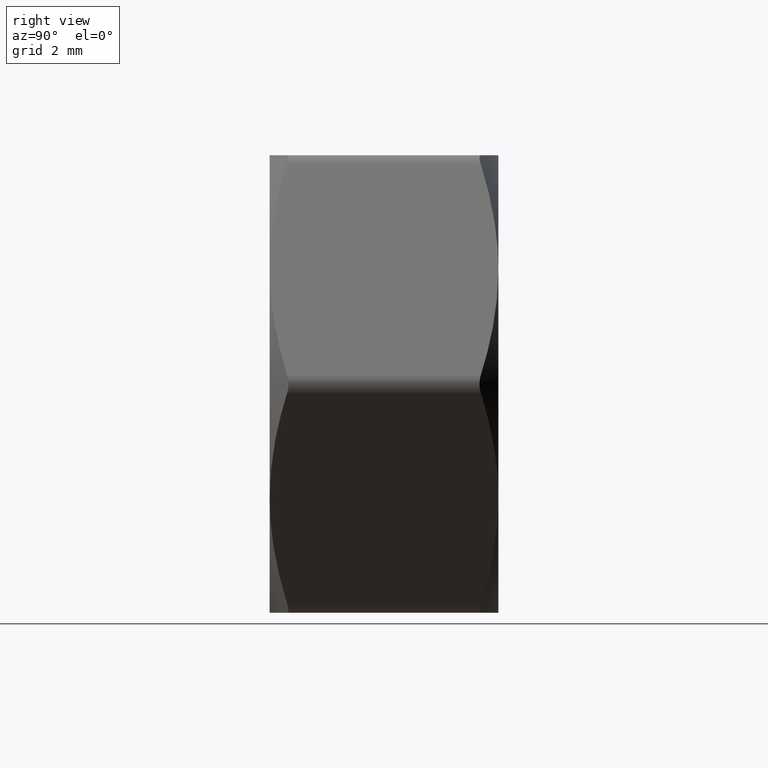
[diagram: clean part render]
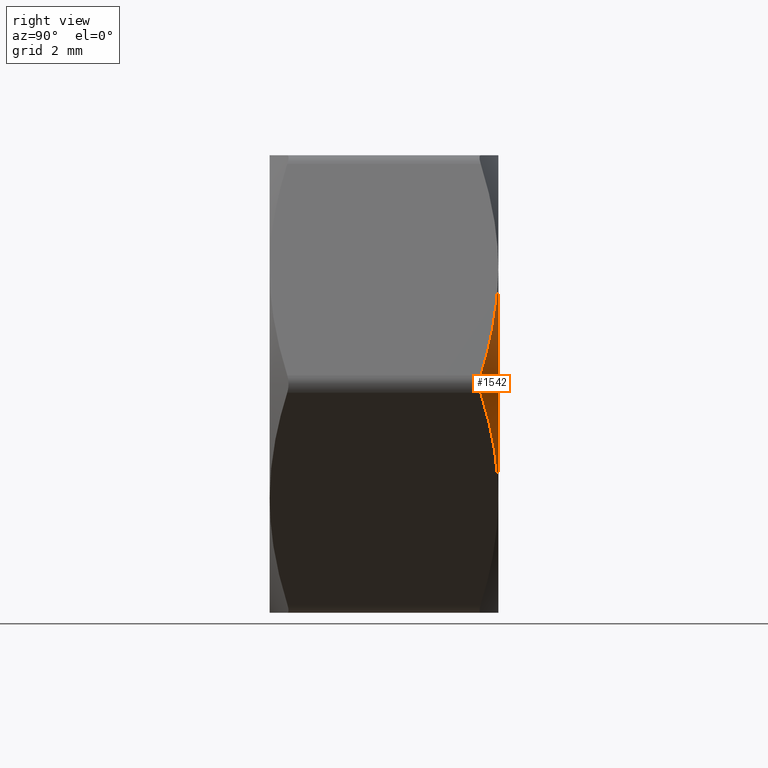
[diagram: same view with one face highlighted and labeled with its STEP entity id]
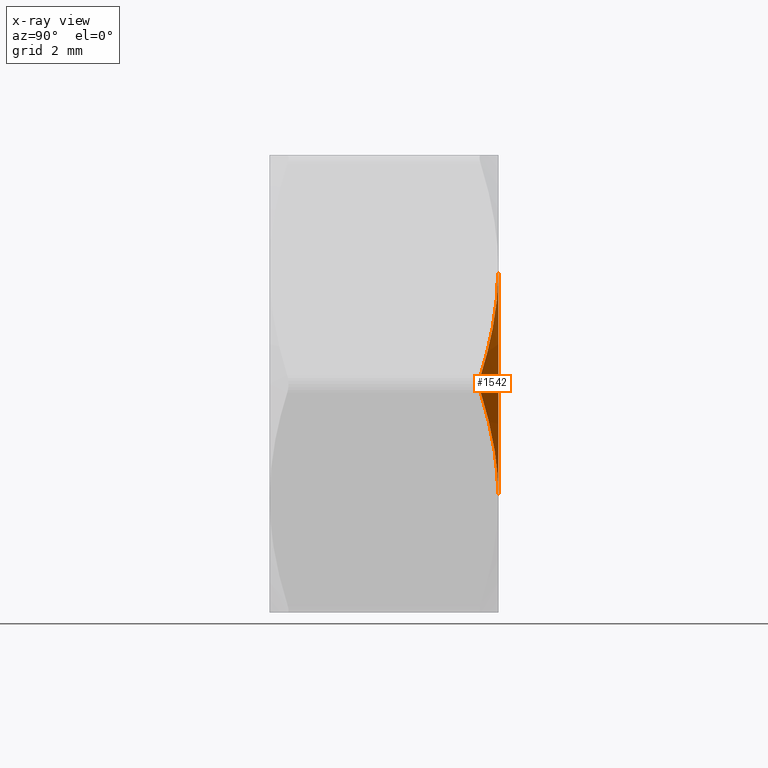
[diagram: x-ray of the same camera — body ghosted, the highlighted face saturated]
A machine part, right view. The second image highlights one B-rep face of the part: STEP entity #1542.
The next image is the same camera in x-ray: the body ghosted, the highlighted face saturated — about 0% of this face is hidden behind the body in this view.
In plain terms, the highlighted conical surface has half-angle 60 deg.
Its self-contained STEP definition (entity closure, byte-faithful):
#14 = CARTESIAN_POINT ( 'NONE',  ( 7.361215932167731100, 2.750326475674879800, -0.2499999999999953900 ) ) ;
#26 = DIRECTION ( 'NONE',  ( 1.000000000000000000, 1.334402673828313300E-016, 0.0000000000000000000 ) ) ;
#33 = CARTESIAN_POINT ( 'NONE',  ( 6.793038842262233400, 3.029614908576547400, -1.234111587412948700 ) ) ;
#90 = DIRECTION ( 'NONE',  ( -0.0000000000000000000, -1.000000000000000000, -0.0000000000000000000 ) ) ;
#141 = EDGE_LOOP ( 'NONE', ( #1475, #1432, #1016, #584 ) ) ;
#149 = CARTESIAN_POINT ( 'NONE',  ( 5.629165124598849900, 3.249999999999999100, -3.250000000000001300 ) ) ;
#183 = CARTESIAN_POINT ( 'NONE',  ( 7.404203769544580800, 2.726980839270554600, -0.1755428815563432100 ) ) ;
#252 = CARTESIAN_POINT ( 'NONE',  ( 6.794026904718143600, 3.058352876056135800, 1.232400213038266700 ) ) ;
#263 = CARTESIAN_POINT ( 'NONE',  ( -3.386450907888041400E-016, 3.249999999999998700, 0.0000000000000000000 ) ) ;
#274 = CARTESIAN_POINT ( 'NONE',  ( 5.923365020047798500, 3.238358288205309200, -2.740430833500967700 ) ) ;
#329 = B_SPLINE_CURVE_WITH_KNOTS ( 'NONE', 3,
 ( #578, #1090, #565, #1567, #183, #947 ),
 .UNSPECIFIED., .F., .F.,
 ( 4, 2, 4 ),
 ( 2.009333649176328600E-015, 0.0002636355533736799100, 0.0005272711067453504600 ),
 .UNSPECIFIED. ) ;
#346 = CIRCLE ( 'NONE', #726, 6.499999999999997300 ) ;
#492 = VERTEX_POINT ( 'NONE', #615 ) ;
#500 = CARTESIAN_POINT ( 'NONE',  ( 5.629165124598850800, 3.249999999999999100, 3.249999999999999600 ) ) ;
#565 = CARTESIAN_POINT ( 'NONE',  ( 7.428125153970312600, 2.714143658310082000, 0.08847891585259294600 ) ) ;
#577 = VERTEX_POINT ( 'NONE', #1406 ) ;
#578 = CARTESIAN_POINT ( 'NONE',  ( 7.361215932168766700, 2.750326475674317100, 0.2499999999982097700 ) ) ;
#584 = ORIENTED_EDGE ( 'NONE', *, *, #1197, .T. ) ;
#615 = CARTESIAN_POINT ( 'NONE',  ( 7.361215932168766700, 2.750326475674317100, 0.2499999999982097700 ) ) ;
#617 = B_SPLINE_CURVE_WITH_KNOTS ( 'NONE', 3,
 ( #868, #252, #1008, #500 ),
 .UNSPECIFIED., .F., .F.,
 ( 4, 4 ),
 ( 0.0002974810109325099900, 0.003797433802554438500 ),
 .UNSPECIFIED. ) ;
#711 = CARTESIAN_POINT ( 'NONE',  ( 5.629165124598849900, 3.249999999999999100, -3.250000000000001300 ) ) ;
#726 = AXIS2_PLACEMENT_3D ( 'NONE', #1604, #90, #860 ) ;
#782 = CARTESIAN_POINT ( 'NONE',  ( 6.360320613116883200, 3.159567907072294600, -1.983601545653925500 ) ) ;
#797 = FACE_OUTER_BOUND ( 'NONE', #141, .T. ) ;
#832 = B_SPLINE_CURVE_WITH_KNOTS ( 'NONE', 3,
 ( #149, #1284, #274, #1544, #782, #33, #1029, #14 ),
 .UNSPECIFIED., .F., .F.,
 ( 4, 2, 2, 4 ),
 ( 0.003797433802554440700, 0.004668978453557810900, 0.005540523104561182100, 0.007283612406567920900 ),
 .UNSPECIFIED. ) ;
#860 = DIRECTION ( 'NONE',  ( 0.0000000000000000000, 0.0000000000000000000, 1.000000000000000000 ) ) ;
#868 = CARTESIAN_POINT ( 'NONE',  ( 7.361215932168766700, 2.750326475674317100, 0.2499999999982097700 ) ) ;
#881 = CONICAL_SURFACE ( 'NONE', #987, 6.499999999999999100, 1.047197551196603000 ) ;
#947 = CARTESIAN_POINT ( 'NONE',  ( 7.361215932167731100, 2.750326475674879800, -0.2499999999999953900 ) ) ;
#985 = EDGE_CURVE ( 'NONE', #492, #1413, #329, .T. ) ;
#987 = AXIS2_PLACEMENT_3D ( 'NONE', #263, #1293, #26 ) ;
#1008 = CARTESIAN_POINT ( 'NONE',  ( 6.218478719796789500, 3.250000000000000400, 2.229278911526101600 ) ) ;
#1016 = ORIENTED_EDGE ( 'NONE', *, *, #1556, .F. ) ;
#1029 = CARTESIAN_POINT ( 'NONE',  ( 7.078287489049793100, 2.903977949313087900, -0.7400464383866253200 ) ) ;
#1090 = CARTESIAN_POINT ( 'NONE',  ( 7.404188987665278000, 2.726988866944812400, 0.1755684845217779500 ) ) ;
#1134 = VERTEX_POINT ( 'NONE', #711 ) ;
#1197 = EDGE_CURVE ( 'NONE', #1134, #577, #346, .T. ) ;
#1284 = CARTESIAN_POINT ( 'NONE',  ( 5.775913707290532900, 3.250000000000002700, -2.995823998839279400 ) ) ;
#1293 = DIRECTION ( 'NONE',  ( 1.041984894734782400E-016, -1.000000000000000000, -0.0000000000000000000 ) ) ;
#1369 = EDGE_CURVE ( 'NONE', #492, #577, #617, .T. ) ;
#1397 = CARTESIAN_POINT ( 'NONE',  ( 7.361215932167731100, 2.750326475674879800, -0.2499999999999953900 ) ) ;
#1406 = CARTESIAN_POINT ( 'NONE',  ( 5.629165124598850800, 3.249999999999999100, 3.249999999999999600 ) ) ;
#1413 = VERTEX_POINT ( 'NONE', #1397 ) ;
#1432 = ORIENTED_EDGE ( 'NONE', *, *, #985, .T. ) ;
#1475 = ORIENTED_EDGE ( 'NONE', *, *, #1369, .F. ) ;
#1542 = ADVANCED_FACE ( 'NONE', ( #797 ), #881, .T. ) ;
#1544 = CARTESIAN_POINT ( 'NONE',  ( 6.215272553528202500, 3.193121803873833400, -2.234832154400793000 ) ) ;
#1556 = EDGE_CURVE ( 'NONE', #1134, #1413, #832, .T. ) ;
#1567 = CARTESIAN_POINT ( 'NONE',  ( 7.428280915287338400, 2.714059782672312100, -0.08759427660737124900 ) ) ;
#1604 = CARTESIAN_POINT ( 'NONE',  ( -3.386450907888041400E-016, 3.250000000000000000, 1.173101005959981900E-015 ) ) ;